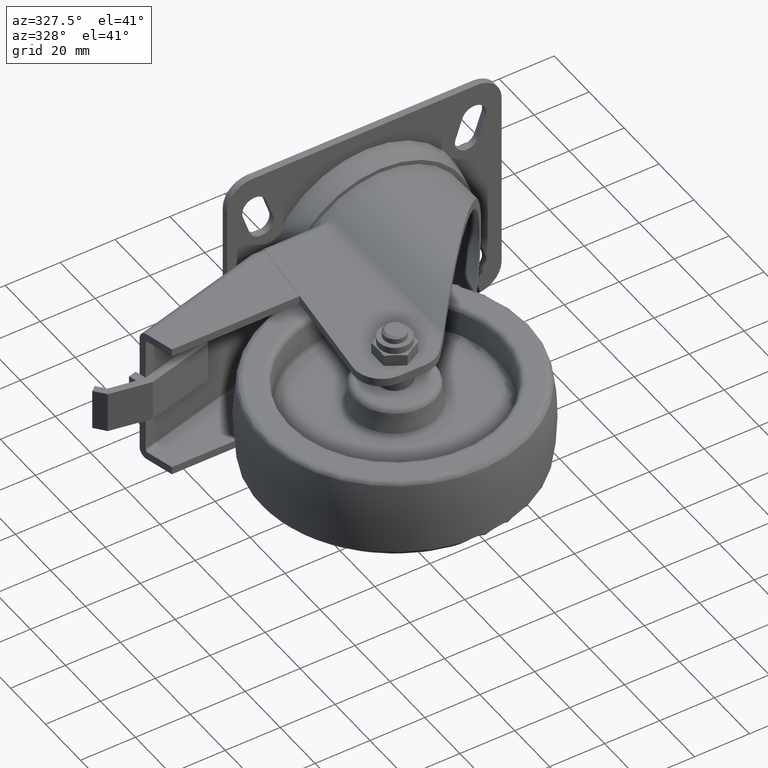
[diagram: clean part render]
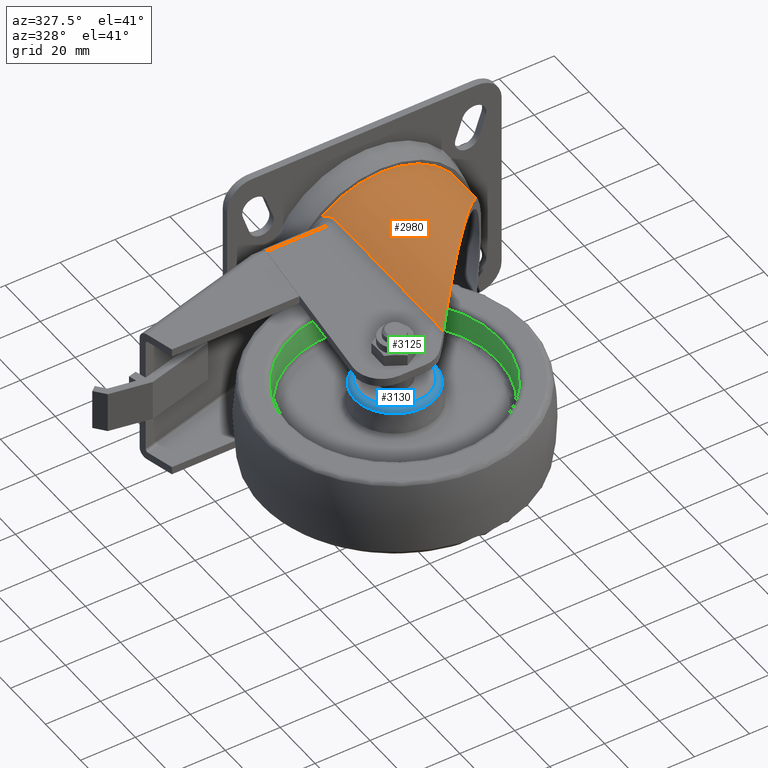
[diagram: same view with three faces highlighted in distinct colors, each labeled with its STEP entity id]
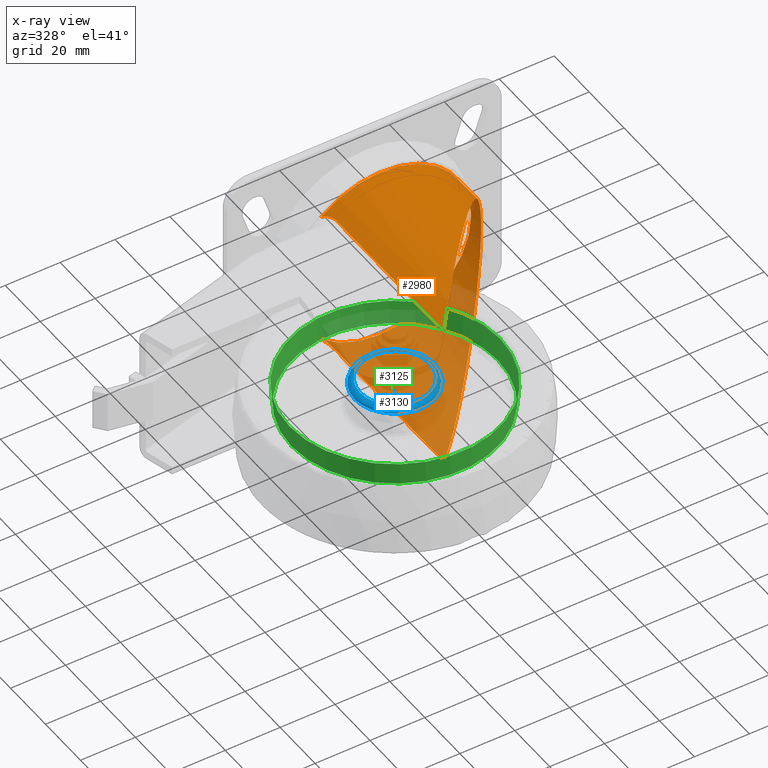
[diagram: x-ray of the same camera — body ghosted, the three highlighted faces saturated]
A machine part, auxiliary view with three faces highlighted in distinct colors.
The next image is the same camera in x-ray (body ghosted, the three faces saturated) — at least one of them is partly hidden behind the body in this view.
Their STEP definitions:

[orange] entity #2980 — the highlighted cylindrical surface (partial cylindrical patch) has radius 33 mm, axis along (0, -1, 0).
#102=ELLIPSE('',#3203,50.5698303291217,33.);
#108=B_SPLINE_CURVE_WITH_KNOTS('',3,(#4553,#4554,#4555,#4556,#4557,#4558),
 .UNSPECIFIED.,.F.,.F.,(4,1,1,4),(0.916901928341069,1.16961731235221,1.33809423502631,
1.5065711577004),.UNSPECIFIED.);
#113=B_SPLINE_CURVE_WITH_KNOTS('',3,(#4663,#4664,#4665,#4666,#4667),
 .UNSPECIFIED.,.F.,.F.,(4,1,4),(1.23358113847241E-16,0.252715384012987,
0.589669229363636),.UNSPECIFIED.);
#123=CYLINDRICAL_SURFACE('',#3202,33.);
#201=FACE_OUTER_BOUND('',#379,.T.);
#379=EDGE_LOOP('',(#1938,#1939,#1940,#1941,#1942,#1943));
#590=CIRCLE('',#3201,33.);
#770=LINE('',#4569,#977);
#771=LINE('',#4629,#978);
#977=VECTOR('',#3596,10.);
#978=VECTOR('',#3605,10.);
#1199=VERTEX_POINT('',#4550);
#1200=VERTEX_POINT('',#4552);
#1201=VERTEX_POINT('',#4567);
#1204=VERTEX_POINT('',#4625);
#1205=VERTEX_POINT('',#4627);
#1206=VERTEX_POINT('',#4655);
#1476=EDGE_CURVE('',#1199,#1200,#108,.T.);
#1480=EDGE_CURVE('',#1200,#1201,#770,.T.);
#1486=EDGE_CURVE('',#1205,#1204,#771,.T.);
#1489=EDGE_CURVE('',#1204,#1206,#113,.T.);
#1496=EDGE_CURVE('',#1206,#1199,#590,.T.);
#1497=EDGE_CURVE('',#1205,#1201,#102,.T.);
#1938=ORIENTED_EDGE('',*,*,#1480,.F.);
#1939=ORIENTED_EDGE('',*,*,#1476,.F.);
#1940=ORIENTED_EDGE('',*,*,#1496,.F.);
#1941=ORIENTED_EDGE('',*,*,#1489,.F.);
#1942=ORIENTED_EDGE('',*,*,#1486,.F.);
#1943=ORIENTED_EDGE('',*,*,#1497,.T.);
#2980=ADVANCED_FACE('',(#201),#123,.T.);
#3201=AXIS2_PLACEMENT_3D('',#4776,#3620,#3621);
#3202=AXIS2_PLACEMENT_3D('',#4777,#3622,#3623);
#3203=AXIS2_PLACEMENT_3D('',#4778,#3624,#3625);
#3596=DIRECTION('',(0.,-1.,0.));
#3605=DIRECTION('',(0.,1.,0.));
#3620=DIRECTION('center_axis',(0.,1.,0.));
#3621=DIRECTION('ref_axis',(1.,0.,0.));
#3622=DIRECTION('center_axis',(0.,-1.,0.));
#3623=DIRECTION('ref_axis',(1.,0.,0.));
#3624=DIRECTION('center_axis',(-0.757734475862358,0.652562996261355,-1.51267272270184E-32));
#3625=DIRECTION('ref_axis',(0.652562996261355,0.757734475862358,-1.59826558298198E-16));
#4550=CARTESIAN_POINT('',(15.4161972232942,66.1999999999811,-24.9627614196881));
#4552=CARTESIAN_POINT('',(17.3163216016198,61.2,-26.4868421052632));
#4553=CARTESIAN_POINT('Ctrl Pts',(15.4161972232871,66.199999999971,-24.9627614196819));
#4554=CARTESIAN_POINT('Ctrl Pts',(15.8479848915,65.6630454476854,-25.3361023219739));
#4555=CARTESIAN_POINT('Ctrl Pts',(16.5176252066044,64.6459173034172,-25.8813621706501));
#4556=CARTESIAN_POINT('Ctrl Pts',(17.1714802798018,62.8921513575018,-26.3801420226297));
#4557=CARTESIAN_POINT('Ctrl Pts',(17.3163216016198,61.761589742247,-26.4868421052632));
#4558=CARTESIAN_POINT('Ctrl Pts',(17.3163216016198,61.2,-26.4868421052632));
#4567=CARTESIAN_POINT('',(17.3163216016198,-0.674537426129769,-26.4868421052632));
#4569=CARTESIAN_POINT('',(17.3163216016198,28.5,-26.4868421052632));
#4625=CARTESIAN_POINT('',(17.3163216016198,61.2,26.4868421052632));
#4627=CARTESIAN_POINT('',(17.3163216016198,-0.674537426129769,26.4868421052632));
#4629=CARTESIAN_POINT('',(17.3163216016198,28.5,26.4868421052632));
#4655=CARTESIAN_POINT('',(15.4161972232654,66.199999999999,24.9627614196632));
#4663=CARTESIAN_POINT('Ctrl Pts',(17.3163216016198,61.2,26.4868421052632));
#4664=CARTESIAN_POINT('Ctrl Pts',(17.3163216016198,62.0423846133766,26.4868421052632));
#4665=CARTESIAN_POINT('Ctrl Pts',(16.9198274027357,63.9990438794714,26.1968442355593));
#4666=CARTESIAN_POINT('Ctrl Pts',(15.9919141142213,65.484060596949,25.4605492893914));
#4667=CARTESIAN_POINT('Ctrl Pts',(15.416197223265,66.1999999999985,24.9627614196628));
#4776=CARTESIAN_POINT('Origin',(37.,66.2,0.));
#4777=CARTESIAN_POINT('Origin',(37.,28.5,0.));
#4778=CARTESIAN_POINT('Origin',(37.,22.1814961211146,0.));

[blue] entity #3130 — the highlighted toroidal blend (fillet) surface has major radius 12.6673 mm and minor (blend) radius 2 mm.
#97=TOROIDAL_SURFACE('',#3490,12.6673376519652,1.99999999999999);
#351=FACE_OUTER_BOUND('',#548,.T.);
#548=EDGE_LOOP('',(#2676,#2677,#2678,#2679,#2680));
#721=CIRCLE('',#3488,14.6597270481486);
#722=CIRCLE('',#3489,14.6597270481486);
#723=CIRCLE('',#3491,1.99999999999999);
#724=CIRCLE('',#3492,12.6673376519652);
#1415=VERTEX_POINT('',#5543);
#1416=VERTEX_POINT('',#5545);
#1417=VERTEX_POINT('',#5549);
#1838=EDGE_CURVE('',#1415,#1416,#721,.T.);
#1839=EDGE_CURVE('',#1416,#1415,#722,.T.);
#1840=EDGE_CURVE('',#1416,#1417,#723,.T.);
#1841=EDGE_CURVE('',#1417,#1417,#724,.T.);
#2676=ORIENTED_EDGE('',*,*,#1838,.F.);
#2677=ORIENTED_EDGE('',*,*,#1839,.F.);
#2678=ORIENTED_EDGE('',*,*,#1840,.T.);
#2679=ORIENTED_EDGE('',*,*,#1841,.T.);
#2680=ORIENTED_EDGE('',*,*,#1840,.F.);
#3130=ADVANCED_FACE('',(#351),#97,.T.);
#3488=AXIS2_PLACEMENT_3D('',#5546,#4363,#4364);
#3489=AXIS2_PLACEMENT_3D('',#5547,#4365,#4366);
#3490=AXIS2_PLACEMENT_3D('',#5548,#4367,#4368);
#3491=AXIS2_PLACEMENT_3D('',#5550,#4369,#4370);
#3492=AXIS2_PLACEMENT_3D('',#5551,#4371,#4372);
#4363=DIRECTION('center_axis',(0.,0.,-1.));
#4364=DIRECTION('ref_axis',(1.,0.,0.));
#4365=DIRECTION('center_axis',(0.,0.,-1.));
#4366=DIRECTION('ref_axis',(1.,0.,0.));
#4367=DIRECTION('center_axis',(0.,0.,-1.));
#4368=DIRECTION('ref_axis',(-1.,0.,0.));
#4369=DIRECTION('center_axis',(-1.22464679914735E-16,-1.,0.));
#4370=DIRECTION('ref_axis',(1.,-1.22464679914735E-16,0.));
#4371=DIRECTION('center_axis',(0.,0.,-1.));
#4372=DIRECTION('ref_axis',(1.,0.,0.));
#5543=CARTESIAN_POINT('',(-14.6597270481486,-1.79523948884646E-15,13.1743114854953));
#5545=CARTESIAN_POINT('',(14.6597270481486,-1.79529878058891E-15,13.1743114854953));
#5546=CARTESIAN_POINT('Origin',(0.,0.,13.1743114854953));
#5547=CARTESIAN_POINT('Origin',(0.,0.,13.1743114854953));
#5548=CARTESIAN_POINT('Origin',(0.,0.,13.));
#5549=CARTESIAN_POINT('',(12.6673376519652,-3.10250043492199E-15,15.));
#5550=CARTESIAN_POINT('Origin',(12.6673376519652,-1.55130145091979E-15,
13.));
#5551=CARTESIAN_POINT('Origin',(0.,0.,15.));

[green] entity #3125 — the highlighted conical surface has half-angle 5 deg.
#77=CONICAL_SURFACE('',#3473,37.9688024622162,0.0872664625997168);
#346=FACE_OUTER_BOUND('',#543,.T.);
#543=EDGE_LOOP('',(#2646,#2647,#2648,#2649,#2650,#2651));
#709=CIRCLE('',#3471,38.3402729518514);
#710=CIRCLE('',#3472,38.3402729518514);
#711=CIRCLE('',#3474,37.5973319725811);
#712=CIRCLE('',#3475,37.5973319725811);
#938=LINE('',#5523,#1145);
#1145=VECTOR('',#4336,37.9688024622162);
#1405=VERTEX_POINT('',#5513);
#1406=VERTEX_POINT('',#5515);
#1407=VERTEX_POINT('',#5519);
#1408=VERTEX_POINT('',#5520);
#1823=EDGE_CURVE('',#1405,#1406,#709,.T.);
#1824=EDGE_CURVE('',#1406,#1405,#710,.T.);
#1825=EDGE_CURVE('',#1407,#1408,#711,.T.);
#1826=EDGE_CURVE('',#1408,#1407,#712,.T.);
#1827=EDGE_CURVE('',#1407,#1406,#938,.T.);
#2646=ORIENTED_EDGE('',*,*,#1825,.T.);
#2647=ORIENTED_EDGE('',*,*,#1826,.T.);
#2648=ORIENTED_EDGE('',*,*,#1827,.T.);
#2649=ORIENTED_EDGE('',*,*,#1823,.F.);
#2650=ORIENTED_EDGE('',*,*,#1824,.F.);
#2651=ORIENTED_EDGE('',*,*,#1827,.F.);
#3125=ADVANCED_FACE('',(#346),#77,.F.);
#3471=AXIS2_PLACEMENT_3D('',#5516,#4326,#4327);
#3472=AXIS2_PLACEMENT_3D('',#5517,#4328,#4329);
#3473=AXIS2_PLACEMENT_3D('',#5518,#4330,#4331);
#3474=AXIS2_PLACEMENT_3D('',#5521,#4332,#4333);
#3475=AXIS2_PLACEMENT_3D('',#5522,#4334,#4335);
#4326=DIRECTION('center_axis',(0.,0.,-1.));
#4327=DIRECTION('ref_axis',(1.,0.,0.));
#4328=DIRECTION('center_axis',(0.,0.,-1.));
#4329=DIRECTION('ref_axis',(1.,0.,0.));
#4330=DIRECTION('center_axis',(0.,0.,1.));
#4331=DIRECTION('ref_axis',(1.,0.,0.));
#4332=DIRECTION('center_axis',(0.,0.,-1.));
#4333=DIRECTION('ref_axis',(1.,0.,0.));
#4334=DIRECTION('center_axis',(0.,0.,-1.));
#4335=DIRECTION('ref_axis',(1.,0.,0.));
#4336=DIRECTION('',(-0.0871557427476585,-1.0673500138323E-17,0.996194698091745));
#5513=CARTESIAN_POINT('',(38.3402729518514,-9.39034837282428E-15,13.1743114854953));
#5515=CARTESIAN_POINT('',(-38.3402729518513,-4.69532925489206E-15,13.1743114854953));
#5516=CARTESIAN_POINT('Origin',(0.,0.,13.1743114854953));
#5517=CARTESIAN_POINT('Origin',(0.,0.,13.1743114854953));
#5518=CARTESIAN_POINT('Origin',(0.,0.,8.92838436003332));
#5519=CARTESIAN_POINT('',(-37.5973319725811,-4.6041931620392E-15,4.68245723457132));
#5520=CARTESIAN_POINT('',(37.5973319725811,-4.60434522567019E-15,4.68245723457132));
#5521=CARTESIAN_POINT('Origin',(0.,0.,4.68245723457132));
#5522=CARTESIAN_POINT('Origin',(0.,0.,4.68245723457132));
#5523=CARTESIAN_POINT('',(-37.9688024622162,-4.64983724028112E-15,8.92838436003332));